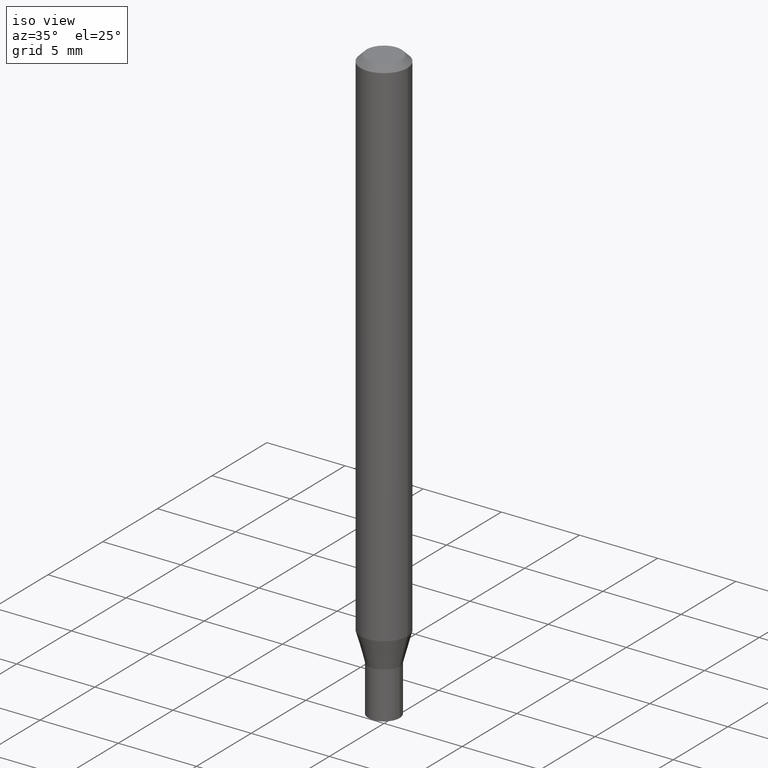
[diagram: clean part render]
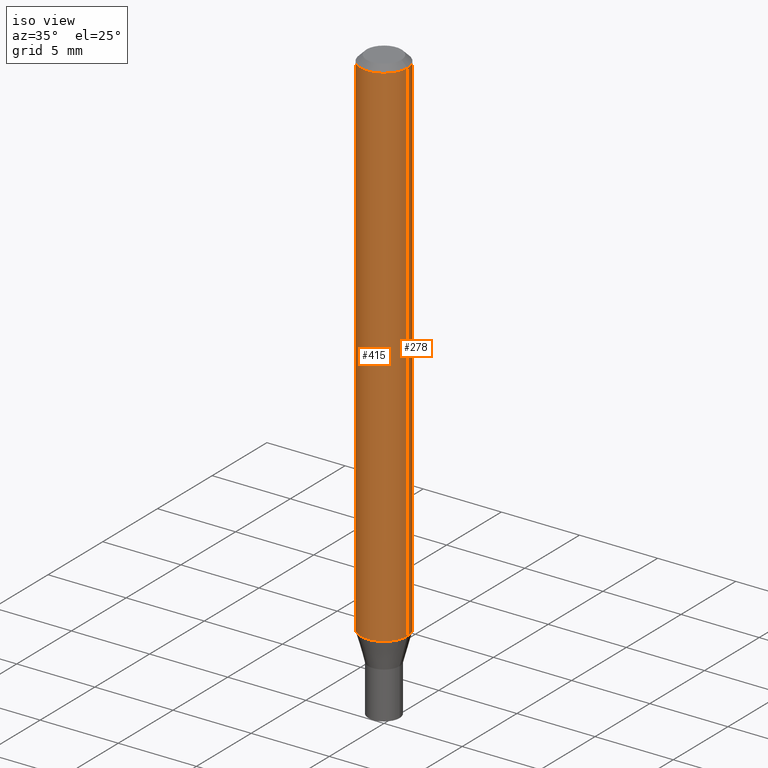
[diagram: same view with one multi-face feature highlighted, each face labeled with its STEP entity id]
A machine part, iso view. The highlighted faces form ONE feature: a constant-radius fillet chain: 2 tangent blend faces with common blend radius 1.4999 mm. The faces share edges in the B-rep.
Their STEP definitions:
[1] entity #278 (Cylinder):
#20 = VERTEX_POINT ( 'NONE', #427 ) ;
#49 = DIRECTION ( 'NONE',  ( -2.445468806185136597E-29, 3.491481338843145583E-15, 1.000000000000000000 ) ) ;
#70 = VECTOR ( 'NONE', #281, 39.37007874015748143 ) ;
#99 = EDGE_CURVE ( 'NONE', #216, #20, #106, .T. ) ;
#106 = LINE ( 'NONE', #324, #70 ) ;
#111 = ORIENTED_EDGE ( 'NONE', *, *, #302, .F. ) ;
#135 = CARTESIAN_POINT ( 'NONE',  ( -0.05904999999999999832, -4.148603977401252046E-15, -1.308378599090893157 ) ) ;
#140 = CIRCLE ( 'NONE', #459, 0.05904999999999999832 ) ;
#154 = DIRECTION ( 'NONE',  ( 1.000000000000000000, -6.982962677686266711E-15, 4.876176775795936353E-29 ) ) ;
#169 = CIRCLE ( 'NONE', #284, 0.05904999999999999832 ) ;
#173 = CARTESIAN_POINT ( 'NONE',  ( 3.199599050756987901E-29, -4.568179462867591539E-15, -1.308378599090893157 ) ) ;
#176 = AXIS2_PLACEMENT_3D ( 'NONE', #303, #195, #154 ) ;
#189 = ORIENTED_EDGE ( 'NONE', *, *, #339, .T. ) ;
#191 = FACE_OUTER_BOUND ( 'NONE', #258, .T. ) ;
#195 = DIRECTION ( 'NONE',  ( -2.445468806185136597E-29, 3.491481338843145583E-15, 1.000000000000000000 ) ) ;
#209 = CARTESIAN_POINT ( 'NONE',  ( 0.05904999999999999832, -4.980523408984964882E-15, -1.308378599090893157 ) ) ;
#216 = VERTEX_POINT ( 'NONE', #209 ) ;
#225 = CARTESIAN_POINT ( 'NONE',  ( 3.668203209277705088E-31, -5.237222008264718399E-17, -0.01499999999999999944 ) ) ;
#233 = CARTESIAN_POINT ( 'NONE',  ( -0.05904999999999999832, -1.890700356008780013E-15, -0.01499999999999999944 ) ) ;
#258 = EDGE_LOOP ( 'NONE', ( #189, #406, #111, #370 ) ) ;
#260 = LINE ( 'NONE', #421, #442 ) ;
#272 = CYLINDRICAL_SURFACE ( 'NONE', #176, 0.05904999999999999832 ) ;
#276 = VERTEX_POINT ( 'NONE', #135 ) ;
#278 = ADVANCED_FACE ( 'NONE', ( #191 ), #272, .T. ) ;
#280 = DIRECTION ( 'NONE',  ( -2.445468806185136597E-29, 3.491481338843145583E-15, 1.000000000000000000 ) ) ;
#281 = DIRECTION ( 'NONE',  ( -2.445468806185136877E-29, 3.491481338843145188E-15, 1.000000000000000000 ) ) ;
#284 = AXIS2_PLACEMENT_3D ( 'NONE', #173, #280, #393 ) ;
#297 = EDGE_CURVE ( 'NONE', #276, #298, #260, .T. ) ;
#298 = VERTEX_POINT ( 'NONE', #233 ) ;
#302 = EDGE_CURVE ( 'NONE', #20, #298, #140, .T. ) ;
#303 = CARTESIAN_POINT ( 'NONE',  ( 0.000000000000000000, 0.000000000000000000, 0.000000000000000000 ) ) ;
#324 = CARTESIAN_POINT ( 'NONE',  ( 0.05904999999999999832, -4.123439461173740327E-16, 2.879382386107500220E-30 ) ) ;
#339 = EDGE_CURVE ( 'NONE', #216, #276, #169, .T. ) ;
#348 = DIRECTION ( 'NONE',  ( -2.445468806185136877E-29, 3.491481338843145188E-15, 1.000000000000000000 ) ) ;
#370 = ORIENTED_EDGE ( 'NONE', *, *, #99, .F. ) ;
#390 = DIRECTION ( 'NONE',  ( 1.000000000000000000, -6.982962677686266711E-15, 0.000000000000000000 ) ) ;
#393 = DIRECTION ( 'NONE',  ( 1.000000000000000000, -6.982962677686273021E-15, 0.000000000000000000 ) ) ;
#406 = ORIENTED_EDGE ( 'NONE', *, *, #297, .T. ) ;
#421 = CARTESIAN_POINT ( 'NONE',  ( -0.05904999999999999832, 4.195754854663391478E-16, -2.904631170795521892E-30 ) ) ;
#427 = CARTESIAN_POINT ( 'NONE',  ( 0.05904999999999999832, -4.647161662000212105E-16, -0.01499999999999999944 ) ) ;
#442 = VECTOR ( 'NONE', #348, 39.37007874015748143 ) ;
#459 = AXIS2_PLACEMENT_3D ( 'NONE', #225, #49, #390 ) ;
[2] entity #415 (Cylinder):
#20 = VERTEX_POINT ( 'NONE', #427 ) ;
#22 = CARTESIAN_POINT ( 'NONE',  ( 3.668203209277705088E-31, -5.237222008264718399E-17, -0.01499999999999999944 ) ) ;
#70 = VECTOR ( 'NONE', #281, 39.37007874015748143 ) ;
#76 = DIRECTION ( 'NONE',  ( 1.000000000000000000, -6.982962677686266711E-15, 4.876176775795936353E-29 ) ) ;
#82 = ORIENTED_EDGE ( 'NONE', *, *, #297, .F. ) ;
#86 = EDGE_CURVE ( 'NONE', #298, #20, #109, .T. ) ;
#94 = DIRECTION ( 'NONE',  ( -2.445468806185136597E-29, 3.491481338843145583E-15, 1.000000000000000000 ) ) ;
#99 = EDGE_CURVE ( 'NONE', #216, #20, #106, .T. ) ;
#106 = LINE ( 'NONE', #324, #70 ) ;
#109 = CIRCLE ( 'NONE', #199, 0.05904999999999999832 ) ;
#119 = CARTESIAN_POINT ( 'NONE',  ( 3.199599050756987901E-29, -4.568179462867591539E-15, -1.308378599090893157 ) ) ;
#127 = FACE_OUTER_BOUND ( 'NONE', #326, .T. ) ;
#131 = CYLINDRICAL_SURFACE ( 'NONE', #346, 0.05904999999999999832 ) ;
#135 = CARTESIAN_POINT ( 'NONE',  ( -0.05904999999999999832, -4.148603977401252046E-15, -1.308378599090893157 ) ) ;
#142 = DIRECTION ( 'NONE',  ( -2.445468806185136597E-29, 3.491481338843145583E-15, 1.000000000000000000 ) ) ;
#197 = ORIENTED_EDGE ( 'NONE', *, *, #86, .F. ) ;
#199 = AXIS2_PLACEMENT_3D ( 'NONE', #22, #309, #323 ) ;
#209 = CARTESIAN_POINT ( 'NONE',  ( 0.05904999999999999832, -4.980523408984964882E-15, -1.308378599090893157 ) ) ;
#216 = VERTEX_POINT ( 'NONE', #209 ) ;
#226 = ORIENTED_EDGE ( 'NONE', *, *, #99, .T. ) ;
#233 = CARTESIAN_POINT ( 'NONE',  ( -0.05904999999999999832, -1.890700356008780013E-15, -0.01499999999999999944 ) ) ;
#260 = LINE ( 'NONE', #421, #442 ) ;
#276 = VERTEX_POINT ( 'NONE', #135 ) ;
#281 = DIRECTION ( 'NONE',  ( -2.445468806185136877E-29, 3.491481338843145188E-15, 1.000000000000000000 ) ) ;
#297 = EDGE_CURVE ( 'NONE', #276, #298, #260, .T. ) ;
#298 = VERTEX_POINT ( 'NONE', #233 ) ;
#309 = DIRECTION ( 'NONE',  ( -2.445468806185136597E-29, 3.491481338843145583E-15, 1.000000000000000000 ) ) ;
#321 = AXIS2_PLACEMENT_3D ( 'NONE', #119, #142, #372 ) ;
#323 = DIRECTION ( 'NONE',  ( 1.000000000000000000, -6.982962677686266711E-15, 0.000000000000000000 ) ) ;
#324 = CARTESIAN_POINT ( 'NONE',  ( 0.05904999999999999832, -4.123439461173740327E-16, 2.879382386107500220E-30 ) ) ;
#326 = EDGE_LOOP ( 'NONE', ( #82, #374, #226, #197 ) ) ;
#346 = AXIS2_PLACEMENT_3D ( 'NONE', #426, #94, #76 ) ;
#348 = DIRECTION ( 'NONE',  ( -2.445468806185136877E-29, 3.491481338843145188E-15, 1.000000000000000000 ) ) ;
#372 = DIRECTION ( 'NONE',  ( 1.000000000000000000, -6.982962677686273021E-15, 0.000000000000000000 ) ) ;
#374 = ORIENTED_EDGE ( 'NONE', *, *, #445, .T. ) ;
#415 = ADVANCED_FACE ( 'NONE', ( #127 ), #131, .T. ) ;
#421 = CARTESIAN_POINT ( 'NONE',  ( -0.05904999999999999832, 4.195754854663391478E-16, -2.904631170795521892E-30 ) ) ;
#426 = CARTESIAN_POINT ( 'NONE',  ( 0.000000000000000000, 0.000000000000000000, 0.000000000000000000 ) ) ;
#427 = CARTESIAN_POINT ( 'NONE',  ( 0.05904999999999999832, -4.647161662000212105E-16, -0.01499999999999999944 ) ) ;
#442 = VECTOR ( 'NONE', #348, 39.37007874015748143 ) ;
#445 = EDGE_CURVE ( 'NONE', #276, #216, #450, .T. ) ;
#450 = CIRCLE ( 'NONE', #321, 0.05904999999999999832 ) ;